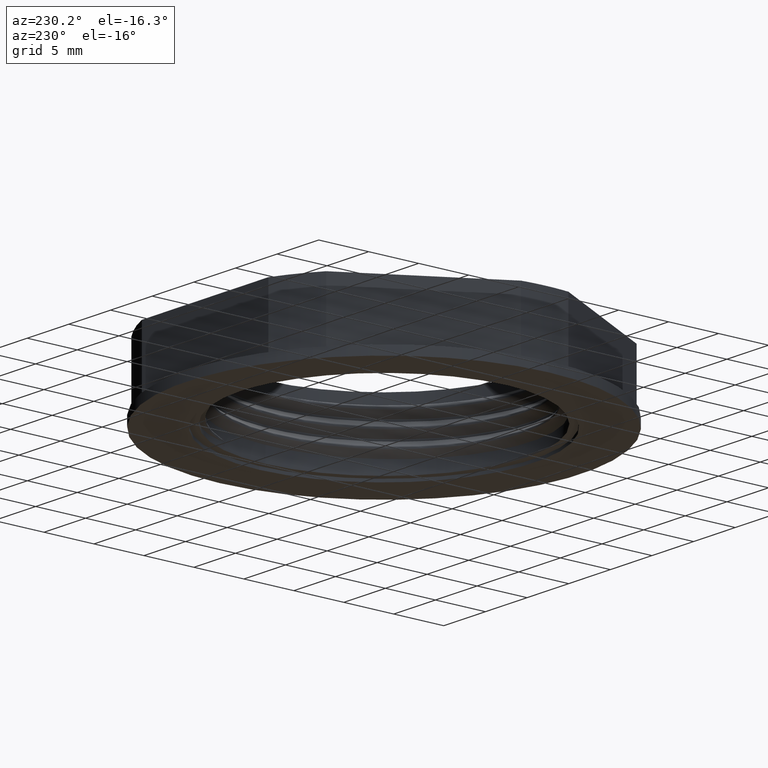
[diagram: clean part render]
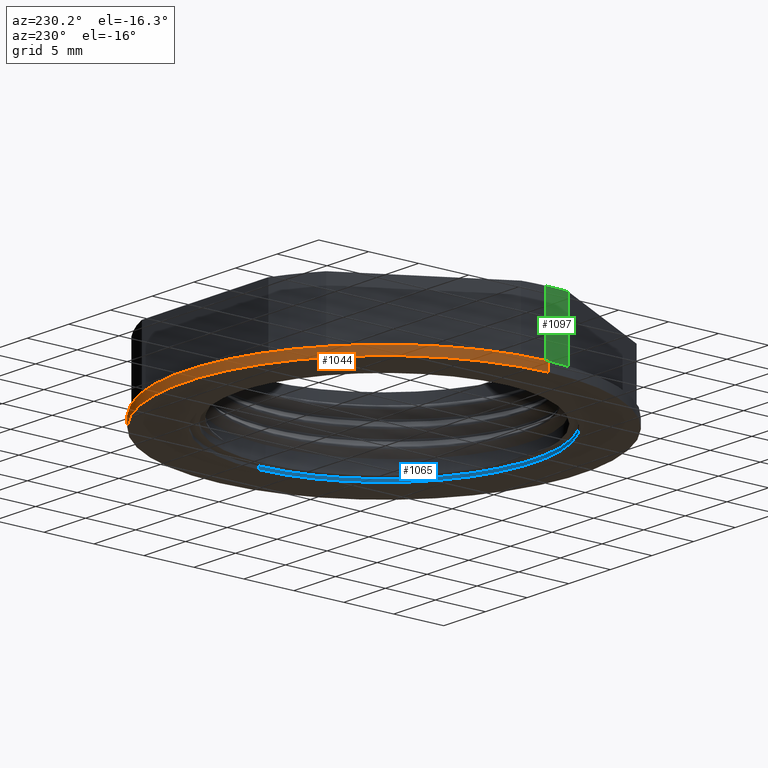
[diagram: same view with three faces highlighted in distinct colors, each labeled with its STEP entity id]
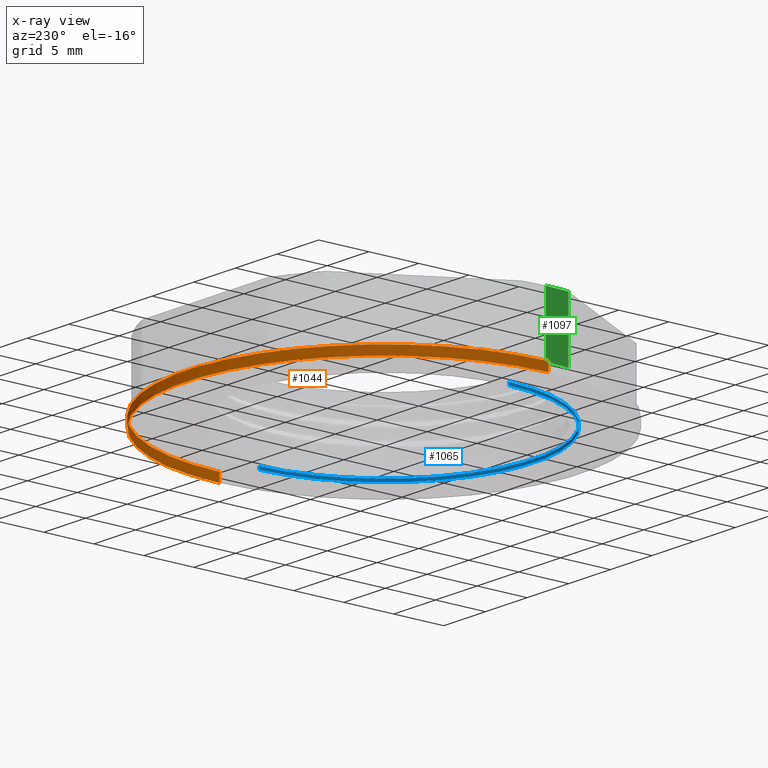
[diagram: x-ray of the same camera — body ghosted, the three highlighted faces saturated]
A machine part, auxiliary view with three faces highlighted in distinct colors.
The next image is the same camera in x-ray (body ghosted, the three faces saturated) — at least one of them is partly hidden behind the body in this view.
Their STEP definitions:

[orange] entity #1044 — the highlighted cylindrical surface (partial cylindrical patch) has radius 19.75 mm, axis along (0, 0, -1).
#664 = CARTESIAN_POINT ( 'NONE',  ( 2363.492954869249800, 871.3999937272660600, 17.32777715393555000 ) ) ;
#665 = DIRECTION ( 'NONE',  ( -1.000000000000000000, 0.0000000000000000000, 0.0000000000000000000 ) ) ;
#672 = FACE_OUTER_BOUND ( 'NONE', #1520, .T. ) ;
#676 = CYLINDRICAL_SURFACE ( 'NONE', #2120, 19.75000000000015600 ) ;
#677 = DIRECTION ( 'NONE',  ( 0.0000000000000000000, 0.0000000000000000000, -1.000000000000000000 ) ) ;
#978 = EDGE_CURVE ( 'NONE', #1470, #1477, #2172, .T. ) ;
#985 = EDGE_CURVE ( 'NONE', #1470, #1466, #1803, .T. ) ;
#1000 = EDGE_CURVE ( 'NONE', #1477, #1499, #1953, .T. ) ;
#1010 = EDGE_CURVE ( 'NONE', #1466, #1499, #2059, .T. ) ;
#1044 = ADVANCED_FACE ( 'NONE', ( #672 ), #676, .T. ) ;
#1130 = CARTESIAN_POINT ( 'NONE',  ( 2343.742954869249800, 871.3999937272660600, 17.32777715393555000 ) ) ;
#1176 = CARTESIAN_POINT ( 'NONE',  ( 2383.242954869249800, 871.3999937272660600, 16.42777715393554800 ) ) ;
#1178 = CARTESIAN_POINT ( 'NONE',  ( 2383.242954869249800, 871.3999937272660600, 17.32777715393555000 ) ) ;
#1192 = CARTESIAN_POINT ( 'NONE',  ( 2343.742954869249800, 871.3999937272660600, 16.42777715393554800 ) ) ;
#1466 = VERTEX_POINT ( 'NONE', #1192 ) ;
#1470 = VERTEX_POINT ( 'NONE', #1130 ) ;
#1477 = VERTEX_POINT ( 'NONE', #1178 ) ;
#1499 = VERTEX_POINT ( 'NONE', #1176 ) ;
#1520 = EDGE_LOOP ( 'NONE', ( #1654, #1634, #1651, #1633 ) ) ;
#1633 = ORIENTED_EDGE ( 'NONE', *, *, #985, .F. ) ;
#1634 = ORIENTED_EDGE ( 'NONE', *, *, #1000, .T. ) ;
#1651 = ORIENTED_EDGE ( 'NONE', *, *, #1010, .F. ) ;
#1654 = ORIENTED_EDGE ( 'NONE', *, *, #978, .T. ) ;
#1778 = DIRECTION ( 'NONE',  ( 0.0000000000000000000, 0.0000000000000000000, -1.000000000000000000 ) ) ;
#1779 = DIRECTION ( 'NONE',  ( -1.000000000000000000, 0.0000000000000000000, 0.0000000000000000000 ) ) ;
#1786 = CARTESIAN_POINT ( 'NONE',  ( 2363.492954869249800, 871.3999937272660600, 17.32777715393555000 ) ) ;
#1803 = LINE ( 'NONE', #1805, #2177 ) ;
#1805 = CARTESIAN_POINT ( 'NONE',  ( 2343.742954869249800, 871.3999937272660600, 17.32777715393555000 ) ) ;
#1818 = DIRECTION ( 'NONE',  ( 0.0000000000000000000, 0.0000000000000000000, -1.000000000000000000 ) ) ;
#1953 = LINE ( 'NONE', #1955, #2197 ) ;
#1955 = CARTESIAN_POINT ( 'NONE',  ( 2383.242954869249800, 871.3999937272660600, 17.32777715393555000 ) ) ;
#1989 = DIRECTION ( 'NONE',  ( 0.0000000000000000000, 0.0000000000000000000, -1.000000000000000000 ) ) ;
#1998 = DIRECTION ( 'NONE',  ( -1.000000000000000000, 0.0000000000000000000, 0.0000000000000000000 ) ) ;
#2010 = DIRECTION ( 'NONE',  ( 0.0000000000000000000, 0.0000000000000000000, -1.000000000000000000 ) ) ;
#2026 = CARTESIAN_POINT ( 'NONE',  ( 2363.492954869249800, 871.3999937272660600, 16.42777715393554800 ) ) ;
#2059 = CIRCLE ( 'NONE', #2064, 19.75000000000015600 ) ;
#2064 = AXIS2_PLACEMENT_3D ( 'NONE', #2026, #2010, #1998 ) ;
#2120 = AXIS2_PLACEMENT_3D ( 'NONE', #664, #677, #665 ) ;
#2172 = CIRCLE ( 'NONE', #2193, 19.75000000000015600 ) ;
#2177 = VECTOR ( 'NONE', #1818, 1000.000000000000000 ) ;
#2193 = AXIS2_PLACEMENT_3D ( 'NONE', #1786, #1778, #1779 ) ;
#2197 = VECTOR ( 'NONE', #1989, 1000.000000000000000 ) ;

[blue] entity #1065 — the highlighted cylindrical surface (partial cylindrical patch) has radius 15 mm, axis along (-0, -0, -1).
#723 = CARTESIAN_POINT ( 'NONE',  ( 2363.492954869249800, 871.3999937272660600, 16.72777715393555200 ) ) ;
#725 = CYLINDRICAL_SURFACE ( 'NONE', #2109, 15.00000000000012400 ) ;
#728 = DIRECTION ( 'NONE',  ( -0.0000000000000000000, -0.0000000000000000000, -1.000000000000000000 ) ) ;
#730 = FACE_OUTER_BOUND ( 'NONE', #1524, .T. ) ;
#750 = DIRECTION ( 'NONE',  ( -1.000000000000000000, 0.0000000000000000000, 0.0000000000000000000 ) ) ;
#974 = EDGE_CURVE ( 'NONE', #1471, #1488, #1754, .T. ) ;
#977 = EDGE_CURVE ( 'NONE', #1476, #1488, #2179, .T. ) ;
#984 = EDGE_CURVE ( 'NONE', #1471, #1483, #2191, .T. ) ;
#1009 = EDGE_CURVE ( 'NONE', #1483, #1476, #1977, .T. ) ;
#1065 = ADVANCED_FACE ( 'NONE', ( #730 ), #725, .F. ) ;
#1118 = CARTESIAN_POINT ( 'NONE',  ( 2378.492954869249800, 871.3999937272660600, 16.72777715393555200 ) ) ;
#1175 = CARTESIAN_POINT ( 'NONE',  ( 2378.492954869249800, 871.3999937272660600, 16.42777715393554800 ) ) ;
#1201 = CARTESIAN_POINT ( 'NONE',  ( 2348.492954869249800, 871.3999937272660600, 16.72777715393555200 ) ) ;
#1218 = CARTESIAN_POINT ( 'NONE',  ( 2348.492954869249800, 871.3999937272660600, 16.42777715393554800 ) ) ;
#1471 = VERTEX_POINT ( 'NONE', #1118 ) ;
#1476 = VERTEX_POINT ( 'NONE', #1218 ) ;
#1483 = VERTEX_POINT ( 'NONE', #1201 ) ;
#1488 = VERTEX_POINT ( 'NONE', #1175 ) ;
#1524 = EDGE_LOOP ( 'NONE', ( #1623, #1663, #1642, #1646 ) ) ;
#1623 = ORIENTED_EDGE ( 'NONE', *, *, #984, .F. ) ;
#1642 = ORIENTED_EDGE ( 'NONE', *, *, #977, .F. ) ;
#1646 = ORIENTED_EDGE ( 'NONE', *, *, #1009, .F. ) ;
#1663 = ORIENTED_EDGE ( 'NONE', *, *, #974, .T. ) ;
#1752 = DIRECTION ( 'NONE',  ( 0.0000000000000000000, 0.0000000000000000000, 1.000000000000000000 ) ) ;
#1754 = LINE ( 'NONE', #1762, #2183 ) ;
#1758 = CARTESIAN_POINT ( 'NONE',  ( 2363.492954869249800, 871.3999937272660600, 16.42777715393554800 ) ) ;
#1759 = DIRECTION ( 'NONE',  ( -1.000000000000000000, 0.0000000000000000000, 0.0000000000000000000 ) ) ;
#1762 = CARTESIAN_POINT ( 'NONE',  ( 2378.492954869249800, 871.3999937272660600, 16.72777715393555200 ) ) ;
#1765 = DIRECTION ( 'NONE',  ( -0.0000000000000000000, -0.0000000000000000000, -1.000000000000000000 ) ) ;
#1806 = CARTESIAN_POINT ( 'NONE',  ( 2363.492954869249800, 871.3999937272660600, 16.72777715393555200 ) ) ;
#1817 = DIRECTION ( 'NONE',  ( -0.0000000000000000000, -0.0000000000000000000, -1.000000000000000000 ) ) ;
#1828 = DIRECTION ( 'NONE',  ( -1.000000000000000000, 0.0000000000000000000, 0.0000000000000000000 ) ) ;
#1977 = LINE ( 'NONE', #1995, #2071 ) ;
#1995 = CARTESIAN_POINT ( 'NONE',  ( 2348.492954869249800, 871.3999937272660600, 16.72777715393555200 ) ) ;
#2029 = DIRECTION ( 'NONE',  ( -0.0000000000000000000, -0.0000000000000000000, -1.000000000000000000 ) ) ;
#2071 = VECTOR ( 'NONE', #2029, 1000.000000000000000 ) ;
#2109 = AXIS2_PLACEMENT_3D ( 'NONE', #723, #728, #750 ) ;
#2179 = CIRCLE ( 'NONE', #2186, 15.00000000000012400 ) ;
#2181 = AXIS2_PLACEMENT_3D ( 'NONE', #1806, #1817, #1828 ) ;
#2183 = VECTOR ( 'NONE', #1765, 1000.000000000000000 ) ;
#2186 = AXIS2_PLACEMENT_3D ( 'NONE', #1758, #1752, #1759 ) ;
#2191 = CIRCLE ( 'NONE', #2181, 15.00000000000012400 ) ;

[green] entity #1097 — the highlighted cylindrical surface (partial cylindrical patch) has radius 19.4442 mm, axis along (0, 0, -1).
#568 = CARTESIAN_POINT ( 'NONE',  ( 2363.492954869249800, 871.3999937272660600, 22.22366552085515000 ) ) ;
#570 = DIRECTION ( 'NONE',  ( -1.000000000000000000, 0.0000000000000000000, 0.0000000000000000000 ) ) ;
#576 = DIRECTION ( 'NONE',  ( 0.0000000000000000000, 0.0000000000000000000, -1.000000000000000000 ) ) ;
#579 = FACE_OUTER_BOUND ( 'NONE', #1540, .T. ) ;
#594 = CYLINDRICAL_SURFACE ( 'NONE', #2149, 19.44417794961106300 ) ;
#975 = EDGE_CURVE ( 'NONE', #1497, #1481, #2185, .T. ) ;
#1013 = EDGE_CURVE ( 'NONE', #1489, #1474, #2066, .T. ) ;
#1015 = EDGE_CURVE ( 'NONE', #1497, #1489, #2032, .T. ) ;
#1022 = EDGE_CURVE ( 'NONE', #1481, #1474, #1308, .T. ) ;
#1097 = ADVANCED_FACE ( 'NONE', ( #579 ), #594, .T. ) ;
#1147 = CARTESIAN_POINT ( 'NONE',  ( 2344.193759196173700, 869.0299510043473700, 17.32777715393555000 ) ) ;
#1167 = CARTESIAN_POINT ( 'NONE',  ( 2344.048776919638800, 871.3999937272660600, 23.42366552085514900 ) ) ;
#1174 = CARTESIAN_POINT ( 'NONE',  ( 2344.193759196173200, 869.0299510043490700, 23.42366552085514900 ) ) ;
#1191 = CARTESIAN_POINT ( 'NONE',  ( 2344.048776919638800, 871.3999937272660600, 17.32777715393555000 ) ) ;
#1308 = LINE ( 'NONE', #1309, #2075 ) ;
#1309 = CARTESIAN_POINT ( 'NONE',  ( 2344.193759196173700, 869.0299510043489600, 22.22366552085515000 ) ) ;
#1370 = DIRECTION ( 'NONE',  ( -0.0000000000000000000, -0.0000000000000000000, -1.000000000000000000 ) ) ;
#1474 = VERTEX_POINT ( 'NONE', #1147 ) ;
#1481 = VERTEX_POINT ( 'NONE', #1174 ) ;
#1489 = VERTEX_POINT ( 'NONE', #1191 ) ;
#1497 = VERTEX_POINT ( 'NONE', #1167 ) ;
#1540 = EDGE_LOOP ( 'NONE', ( #1625, #1647, #1628, #1643 ) ) ;
#1625 = ORIENTED_EDGE ( 'NONE', *, *, #975, .F. ) ;
#1628 = ORIENTED_EDGE ( 'NONE', *, *, #1013, .T. ) ;
#1643 = ORIENTED_EDGE ( 'NONE', *, *, #1022, .F. ) ;
#1647 = ORIENTED_EDGE ( 'NONE', *, *, #1015, .T. ) ;
#1756 = DIRECTION ( 'NONE',  ( 0.0000000000000000000, 0.0000000000000000000, 1.000000000000000000 ) ) ;
#1764 = DIRECTION ( 'NONE',  ( 1.000000000000000000, 0.0000000000000000000, 0.0000000000000000000 ) ) ;
#1766 = CARTESIAN_POINT ( 'NONE',  ( 2363.492954869249800, 871.3999937272660600, 23.42366552085514900 ) ) ;
#2006 = CARTESIAN_POINT ( 'NONE',  ( 2363.492954869249800, 871.3999937272660600, 17.32777715393555000 ) ) ;
#2012 = DIRECTION ( 'NONE',  ( -0.0000000000000000000, -0.0000000000000000000, 1.000000000000000000 ) ) ;
#2030 = CARTESIAN_POINT ( 'NONE',  ( 2344.048776919638800, 871.3999937272660600, 22.22366552085515000 ) ) ;
#2032 = LINE ( 'NONE', #2030, #2056 ) ;
#2035 = DIRECTION ( 'NONE',  ( 0.0000000000000000000, 0.0000000000000000000, -1.000000000000000000 ) ) ;
#2036 = DIRECTION ( 'NONE',  ( -1.000000000000000000, 0.0000000000000000000, 0.0000000000000000000 ) ) ;
#2056 = VECTOR ( 'NONE', #2035, 1000.000000000000000 ) ;
#2066 = CIRCLE ( 'NONE', #2079, 19.44417794961106300 ) ;
#2075 = VECTOR ( 'NONE', #1370, 1000.000000000000000 ) ;
#2079 = AXIS2_PLACEMENT_3D ( 'NONE', #2006, #2012, #2036 ) ;
#2149 = AXIS2_PLACEMENT_3D ( 'NONE', #568, #576, #570 ) ;
#2185 = CIRCLE ( 'NONE', #2189, 19.44417794961106300 ) ;
#2189 = AXIS2_PLACEMENT_3D ( 'NONE', #1766, #1756, #1764 ) ;